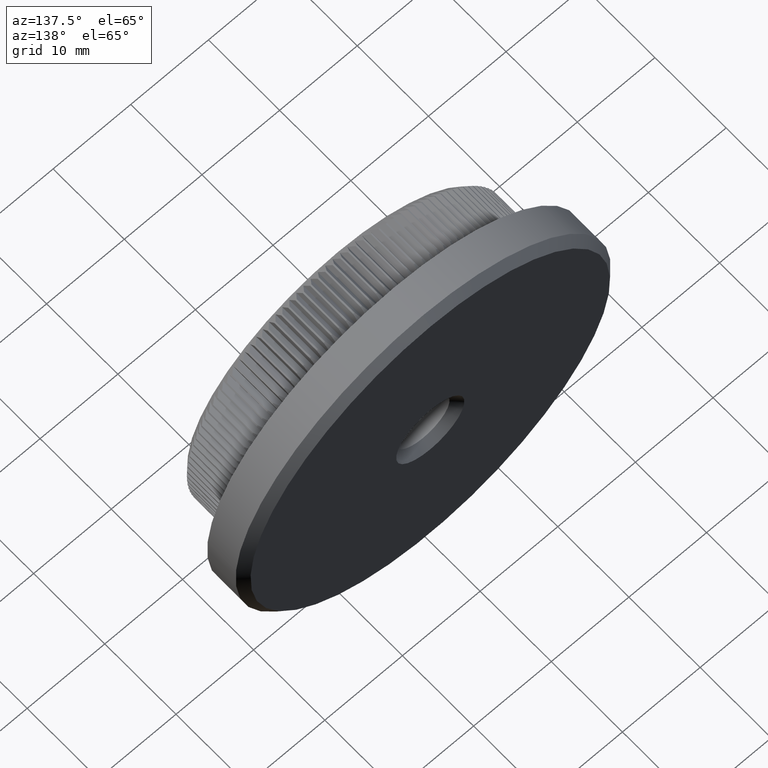
[diagram: clean part render]
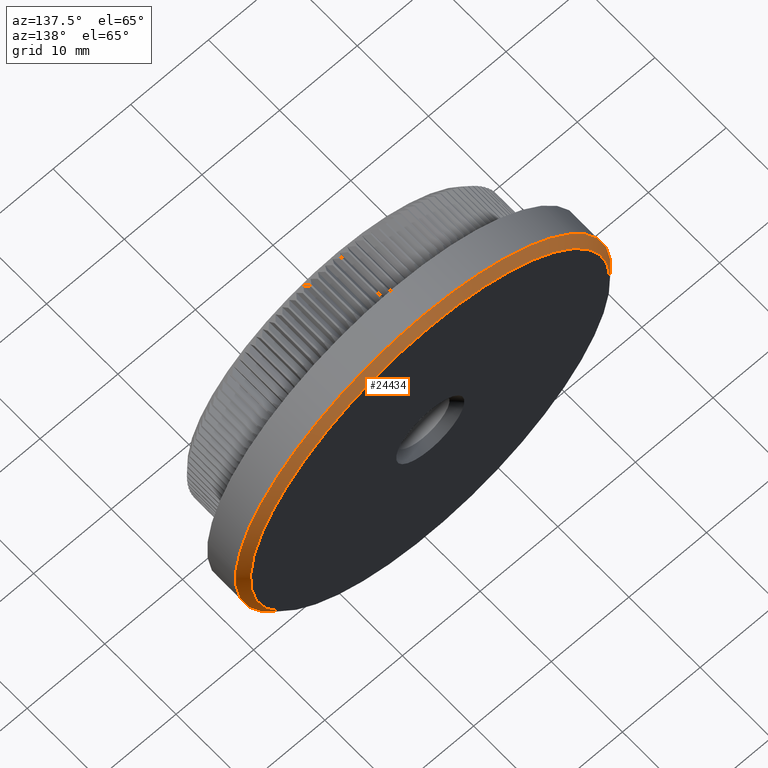
[diagram: same view with one face highlighted and labeled with its STEP entity id]
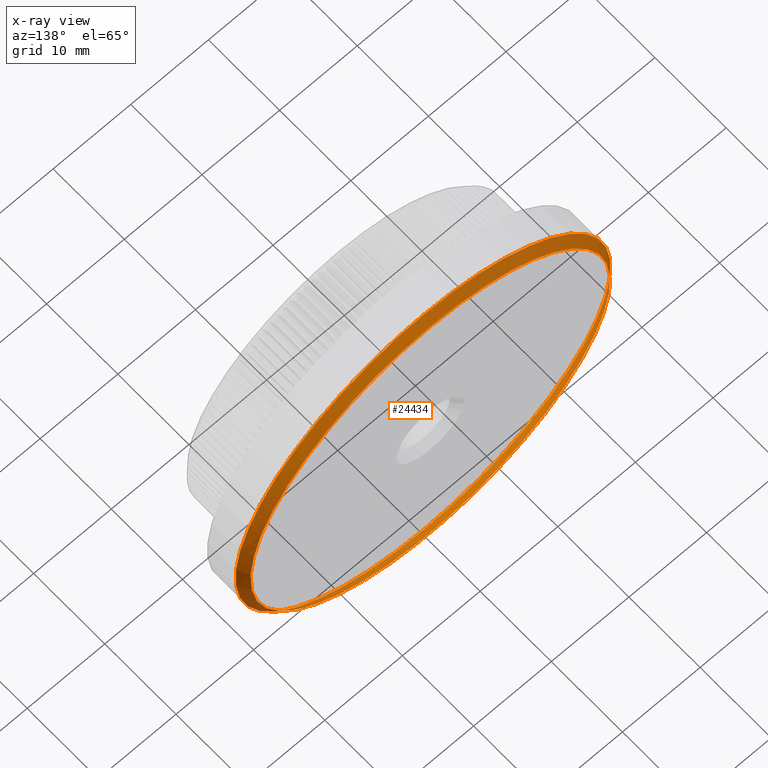
[diagram: x-ray of the same camera — body ghosted, the highlighted face saturated]
A machine part, auxiliary view. The second image highlights one B-rep face of the part: STEP entity #24434.
The next image is the same camera in x-ray: the body ghosted, the highlighted face saturated — about 0% of this face is hidden behind the body in this view.
In plain terms, the highlighted conical surface has half-angle 45 deg.
Its self-contained STEP definition (entity closure, byte-faithful):
#1851 = FACE_BOUND ( 'NONE', #19281, .T. ) ;
#3503 = EDGE_CURVE ( 'NONE', #18487, #18487, #20903, .T. ) ;
#5874 = VERTEX_POINT ( 'NONE', #17032 ) ;
#6365 = DIRECTION ( 'NONE',  ( 0.0000000000000000000, 0.0000000000000000000, 1.000000000000000000 ) ) ;
#6908 = CIRCLE ( 'NONE', #15054, 24.14999999999999900 ) ;
#7685 = CARTESIAN_POINT ( 'NONE',  ( 0.0000000000000000000, 13.00000000000000000, 0.0000000000000000000 ) ) ;
#8213 = CONICAL_SURFACE ( 'NONE', #23466, 24.14999999999999900, 0.7853981633974466100 ) ;
#8981 = AXIS2_PLACEMENT_3D ( 'NONE', #7685, #9928, #19795 ) ;
#9928 = DIRECTION ( 'NONE',  ( 0.0000000000000000000, 1.000000000000000000, 0.0000000000000000000 ) ) ;
#15054 = AXIS2_PLACEMENT_3D ( 'NONE', #28428, #18790, #6365 ) ;
#17032 = CARTESIAN_POINT ( 'NONE',  ( 0.0000000000000000000, 11.99999999999999500, 24.14999999999999900 ) ) ;
#18487 = VERTEX_POINT ( 'NONE', #21097 ) ;
#18790 = DIRECTION ( 'NONE',  ( -0.0000000000000000000, -1.000000000000000000, -0.0000000000000000000 ) ) ;
#19281 = EDGE_LOOP ( 'NONE', ( #19645 ) ) ;
#19645 = ORIENTED_EDGE ( 'NONE', *, *, #3503, .F. ) ;
#19795 = DIRECTION ( 'NONE',  ( 0.0000000000000000000, 0.0000000000000000000, 1.000000000000000000 ) ) ;
#20026 = DIRECTION ( 'NONE',  ( 0.0000000000000000000, 0.0000000000000000000, -1.000000000000000000 ) ) ;
#20903 = CIRCLE ( 'NONE', #8981, 23.14999999999999900 ) ;
#21097 = CARTESIAN_POINT ( 'NONE',  ( 0.0000000000000000000, 13.00000000000000000, 23.14999999999999900 ) ) ;
#22376 = EDGE_CURVE ( 'NONE', #5874, #5874, #6908, .T. ) ;
#23466 = AXIS2_PLACEMENT_3D ( 'NONE', #24175, #26968, #20026 ) ;
#23813 = FACE_OUTER_BOUND ( 'NONE', #25839, .T. ) ;
#24175 = CARTESIAN_POINT ( 'NONE',  ( 0.0000000000000000000, 11.99999999999999500, 0.0000000000000000000 ) ) ;
#24434 = ADVANCED_FACE ( 'NONE', ( #1851, #23813 ), #8213, .T. ) ;
#25839 = EDGE_LOOP ( 'NONE', ( #26611 ) ) ;
#26611 = ORIENTED_EDGE ( 'NONE', *, *, #22376, .F. ) ;
#26968 = DIRECTION ( 'NONE',  ( -0.0000000000000000000, -1.000000000000000000, -0.0000000000000000000 ) ) ;
#28428 = CARTESIAN_POINT ( 'NONE',  ( 0.0000000000000000000, 11.99999999999999500, 0.0000000000000000000 ) ) ;